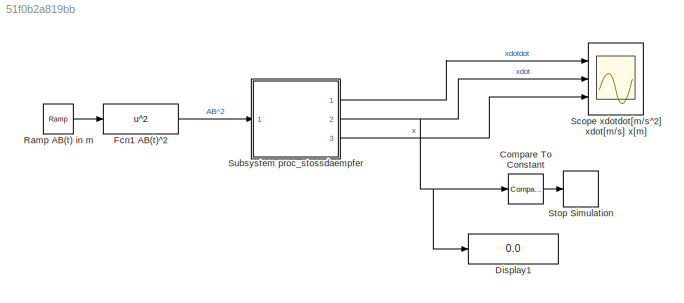
MODEL slx_51f0b2a819bb
KIND model
CONFIG AbsTol = auto
CONFIG EnableMultiTasking = off
CONFIG FixedStep = auto
CONFIG MaxStep = auto
CONFIG MinStep = auto
CONFIG RelTol = 10e-3
CONFIG SampleTimeConstraint = Unconstrained
CONFIG Solver = VariableStepAuto
CONFIG SolverName = VariableStepAuto
CONFIG StartTime = 0.0
CONFIG StopTime = 10
BLOCK [Reference] Compare To Constant  REF=simulink/Logic and Bit
Operations/Compare
To Constant
  Ports = [1, 1]
  SourceBlock = simulink/Logic and Bit\nOperations/Compare\nTo Constant
  SourceProductBaseCode = SL
  SourceProductName = Simulink
  SourceType = Compare To Constant
BLOCK [Display] Display1
  Decimation = 1
  Ports = [1]
BLOCK [Fcn] Fcn1 AB(t)^2
  Expr = u^2
BLOCK [Reference] Ramp AB(t) in m  REF=simulink/Sources/Ramp
  Ports = [0, 1]
  SourceBlock = simulink/Sources/Ramp
  SourceProductBaseCode = SL
  SourceProductName = Simulink
  SourceType = Ramp
BLOCK [Scope] Scope xdotdot[m//s^2] xdot[m//s] x[m]
  Floating = off
  NumInputPorts = 3
  Ports = [3]
  ScopeSpecificationString = Simulink.scopes.TimeScopeBlockCfg('CurrentConfiguration', extmgr.ConfigurationSet(extmgr.Configuration('Core','General UI',true),extmgr.Configuration('Core','Source UI',true),extmgr.Configuration('Sources','WiredSimulink',true),extmgr.Configuration('Visuals','Time Domain',true,'SerializedDisplays',{struct('MinYLimReal','-9.26184','MaxYLimReal','4.31202','YLabelReal','','MinYLimMag','0.00000','MaxY...<+1423ch>
BLOCK [Stop] Stop Simulation
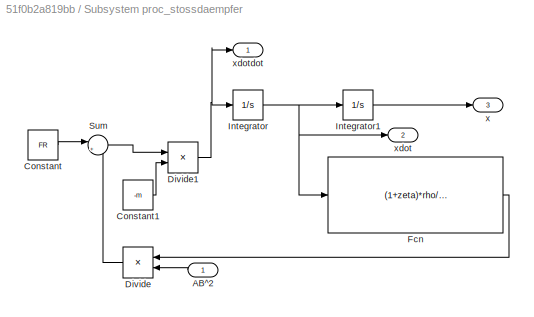
BLOCK [SubSystem] Subsystem proc_stossdaempfer
  Ports = [1, 3]
  RequestExecContextInheritance = off
BLOCK [Inport] Subsystem proc_stossdaempfer/AB^2
  IconDisplay = Port number
BLOCK [Constant] Subsystem proc_stossdaempfer/Constant
  Value = FR
BLOCK [Constant] Subsystem proc_stossdaempfer/Constant1
  Value = -m
BLOCK [Product] Subsystem proc_stossdaempfer/Divide
  InputSameDT = off
  Inputs = */
  OutDataTypeStr = Inherit: Inherit via internal rule
  Ports = [2, 1]
  RndMeth = Floor
  SaturateOnIntegerOverflow = off
BLOCK [Product] Subsystem proc_stossdaempfer/Divide1
  InputSameDT = off
  Inputs = */
  OutDataTypeStr = Inherit: Inherit via internal rule
  Ports = [2, 1]
  RndMeth = Floor
  SaturateOnIntegerOverflow = off
BLOCK [Fcn] Subsystem proc_stossdaempfer/Fcn
  Expr = (1+zeta)*rho/2*AK^3*u^2
BLOCK [Integrator] Subsystem proc_stossdaempfer/Integrator
  InitialCondition = 3
  Ports = [1, 1]
BLOCK [Integrator] Subsystem proc_stossdaempfer/Integrator1
  Ports = [1, 1]
BLOCK [Sum] Subsystem proc_stossdaempfer/Sum
  IconShape = round
  InputSameDT = off
  Inputs = |++
  OutDataTypeStr = Inherit: Inherit via internal rule
  Ports = [2, 1]
  SaturateOnIntegerOverflow = off
BLOCK [Outport] Subsystem proc_stossdaempfer/x
  IconDisplay = Port number
  Port = 3
BLOCK [Outport] Subsystem proc_stossdaempfer/xdot
  IconDisplay = Port number
  Port = 2
BLOCK [Outport] Subsystem proc_stossdaempfer/xdotdot
  IconDisplay = Port number
LINE Compare To Constant:1 -> Stop Simulation:1
LINE Fcn1 AB(t)^2:1 -> Subsystem proc_stossdaempfer:1
LINE Ramp AB(t) in m:1 -> Fcn1 AB(t)^2:1
LINE Subsystem proc_stossdaempfer/AB^2:1 -> Subsystem proc_stossdaempfer/Divide:2
LINE Subsystem proc_stossdaempfer/Constant1:1 -> Subsystem proc_stossdaempfer/Divide1:2
LINE Subsystem proc_stossdaempfer/Constant:1 -> Subsystem proc_stossdaempfer/Sum:1
NET Subsystem proc_stossdaempfer/Divide1:1 -> Subsystem proc_stossdaempfer/Integrator:1, Subsystem proc_stossdaempfer/xdotdot:1
LINE Subsystem proc_stossdaempfer/Divide:1 -> Subsystem proc_stossdaempfer/Sum:2
LINE Subsystem proc_stossdaempfer/Fcn:1 -> Subsystem proc_stossdaempfer/Divide:1
LINE Subsystem proc_stossdaempfer/Integrator1:1 -> Subsystem proc_stossdaempfer/x:1
NET Subsystem proc_stossdaempfer/Integrator:1 -> Subsystem proc_stossdaempfer/Fcn:1, Subsystem proc_stossdaempfer/Integrator1:1, Subsystem proc_stossdaempfer/xdot:1
LINE Subsystem proc_stossdaempfer/Sum:1 -> Subsystem proc_stossdaempfer/Divide1:1
LINE Subsystem proc_stossdaempfer:1 -> Scope xdotdot[m//s^2] xdot[m//s] x[m]:1
NET Subsystem proc_stossdaempfer:2 -> Compare To Constant:1, Display1:1, Scope xdotdot[m//s^2] xdot[m//s] x[m]:2
LINE Subsystem proc_stossdaempfer:3 -> Scope xdotdot[m//s^2] xdot[m//s] x[m]:3
note: NET lines group one-source signal fan-out (src -> all destinations, sorted); 1:1 wires keep LINE
